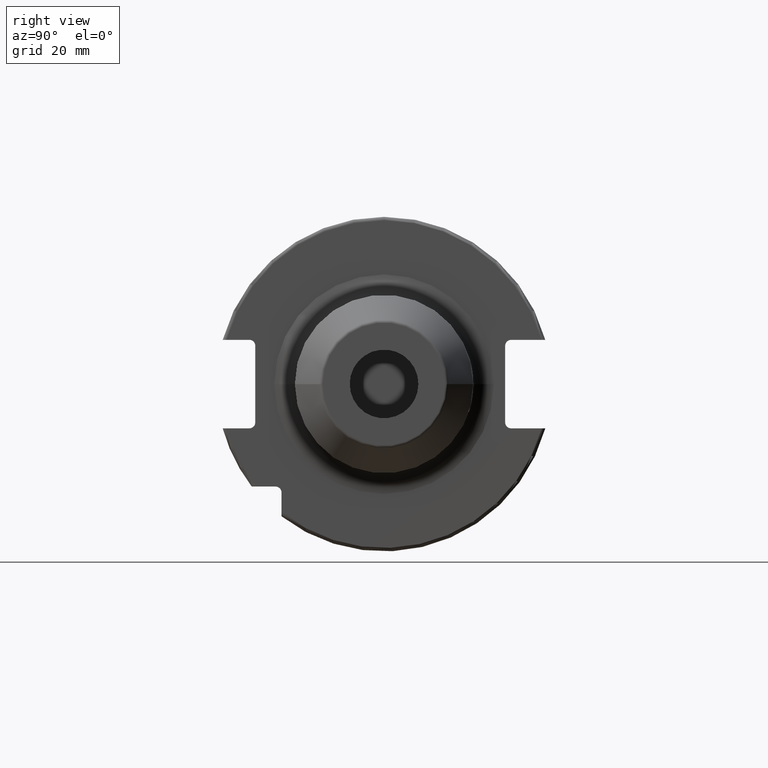
[diagram: clean part render]
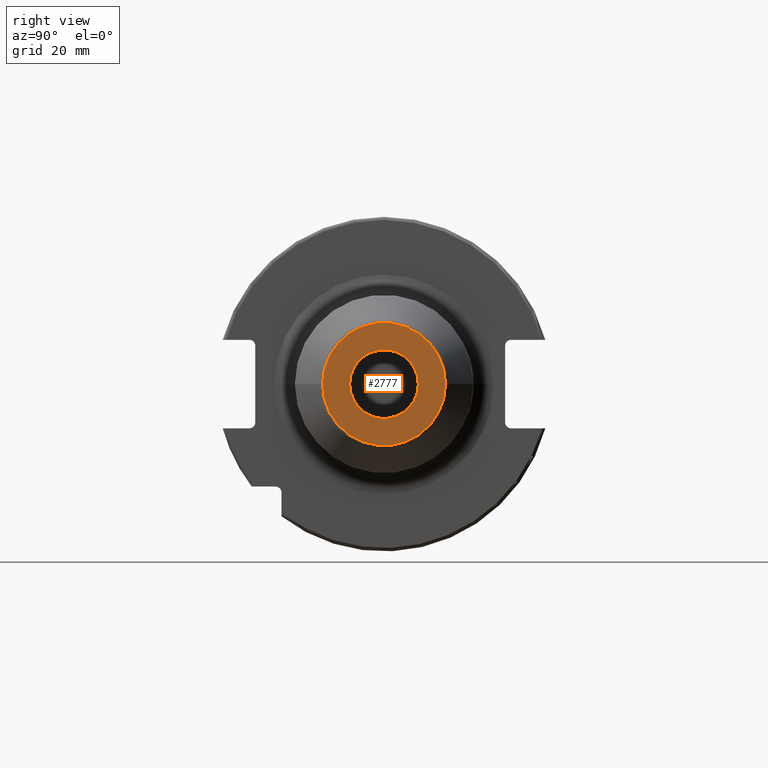
[diagram: same view with one face highlighted and labeled with its STEP entity id]
A machine part, right view. The second image highlights one B-rep face of the part: STEP entity #2777.
In plain terms, the highlighted planar face has unit normal (1, 0, 0).
Its self-contained STEP definition (entity closure, byte-faithful):
#1076=CARTESIAN_POINT('',(6.3E1,0.E0,0.E0));
#1077=DIRECTION('',(1.E0,0.E0,0.E0));
#1078=DIRECTION('',(0.E0,1.E0,0.E0));
#1079=AXIS2_PLACEMENT_3D('',#1076,#1077,#1078);
#1081=CARTESIAN_POINT('',(6.3E1,0.E0,0.E0));
#1082=DIRECTION('',(1.E0,0.E0,0.E0));
#1083=DIRECTION('',(0.E0,-1.E0,0.E0));
#1084=AXIS2_PLACEMENT_3D('',#1081,#1082,#1083);
#1086=CARTESIAN_POINT('',(6.3E1,0.E0,0.E0));
#1087=DIRECTION('',(-1.E0,0.E0,0.E0));
#1088=DIRECTION('',(0.E0,1.E0,0.E0));
#1089=AXIS2_PLACEMENT_3D('',#1086,#1087,#1088);
#1091=CARTESIAN_POINT('',(6.3E1,0.E0,0.E0));
#1092=DIRECTION('',(-1.E0,0.E0,0.E0));
#1093=DIRECTION('',(0.E0,-1.E0,0.E0));
#1094=AXIS2_PLACEMENT_3D('',#1091,#1092,#1093);
#1613=CARTESIAN_POINT('',(6.3E1,-1.E1,0.E0));
#1614=VERTEX_POINT('',#1613);
#1623=CARTESIAN_POINT('',(6.3E1,1.E1,0.E0));
#1624=VERTEX_POINT('',#1623);
#1645=CARTESIAN_POINT('',(6.3E1,1.791709623135E1,-2.497123996711E-14));
#1646=CARTESIAN_POINT('',(6.3E1,-1.791709623135E1,2.277702851213E-14));
#1647=VERTEX_POINT('',#1645);
#1648=VERTEX_POINT('',#1646);
#2762=CARTESIAN_POINT('',(6.3E1,0.E0,0.E0));
#2763=DIRECTION('',(1.E0,0.E0,0.E0));
#2764=DIRECTION('',(0.E0,-1.E0,0.E0));
#2765=AXIS2_PLACEMENT_3D('',#2762,#2763,#2764);
#2766=PLANE('',#2765);
#2768=ORIENTED_EDGE('',*,*,#2767,.T.);
#2770=ORIENTED_EDGE('',*,*,#2769,.T.);
#2771=EDGE_LOOP('',(#2768,#2770));
#2772=FACE_OUTER_BOUND('',#2771,.F.);
#2773=ORIENTED_EDGE('',*,*,#2746,.T.);
#2774=ORIENTED_EDGE('',*,*,#2725,.T.);
#2775=EDGE_LOOP('',(#2773,#2774));
#2776=FACE_BOUND('',#2775,.F.);
#2777=ADVANCED_FACE('',(#2772,#2776),#2766,.T.);
#1080=CIRCLE('',#1079,1.E1);
#1085=CIRCLE('',#1084,1.E1);
#1090=CIRCLE('',#1089,1.791709623135E1);
#1095=CIRCLE('',#1094,1.791709623135E1);
#2725=EDGE_CURVE('',#1614,#1624,#1085,.T.);
#2746=EDGE_CURVE('',#1624,#1614,#1080,.T.);
#2767=EDGE_CURVE('',#1647,#1648,#1090,.T.);
#2769=EDGE_CURVE('',#1648,#1647,#1095,.T.);